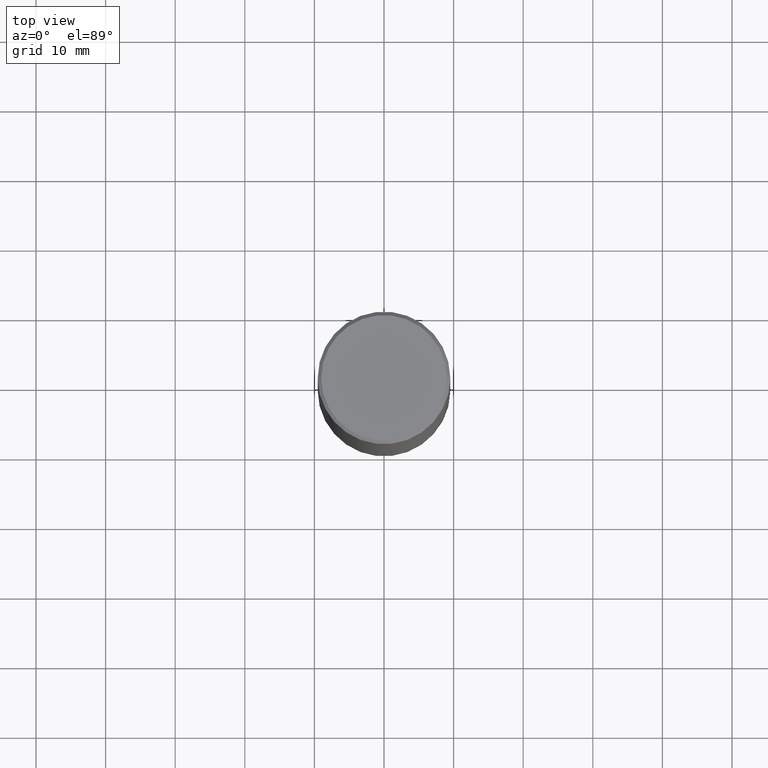
[diagram: clean part render]
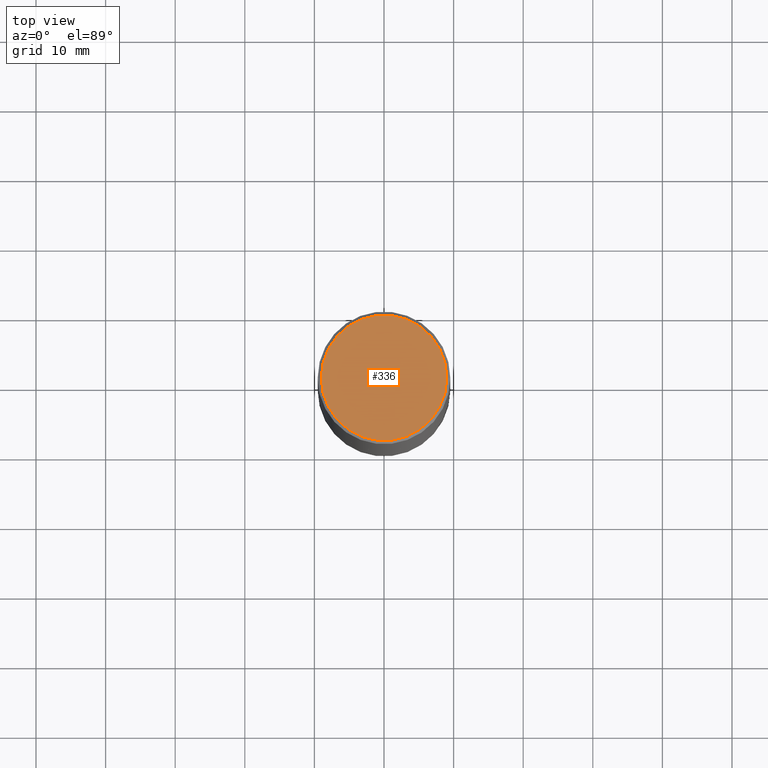
[diagram: same view with one face highlighted and labeled with its STEP entity id]
A machine part, top view. The second image highlights one B-rep face of the part: STEP entity #336.
In plain terms, the highlighted planar face has unit normal (0, -0, -1).
Its self-contained STEP definition (entity closure, byte-faithful):
#12 = DIRECTION ( 'NONE',  ( 2.438088387897960049E-29, -3.491481338843145188E-15, -1.000000000000000000 ) ) ;
#42 = AXIS2_PLACEMENT_3D ( 'NONE', #471, #12, #355 ) ;
#44 = CARTESIAN_POINT ( 'NONE',  ( 0.3549999999999990941, -2.538996582575035132E-15, 8.537024980218368550E-18 ) ) ;
#86 = DIRECTION ( 'NONE',  ( 1.000000000000000000, -6.982962677686265133E-15, 4.876231632512000515E-29 ) ) ;
#92 = ORIENTED_EDGE ( 'NONE', *, *, #427, .T. ) ;
#116 = PLANE ( 'NONE',  #42 ) ;
#154 = EDGE_CURVE ( 'NONE', #319, #354, #332, .T. ) ;
#172 = DIRECTION ( 'NONE',  ( -2.445468806185136597E-29, 3.491481338843145583E-15, 1.000000000000000000 ) ) ;
#200 = DIRECTION ( 'NONE',  ( -2.445468806185136597E-29, 3.491481338843145583E-15, 1.000000000000000000 ) ) ;
#202 = AXIS2_PLACEMENT_3D ( 'NONE', #364, #172, #326 ) ;
#284 = CARTESIAN_POINT ( 'NONE',  ( -0.3549999999999990941, 2.513866563967049547E-15, 8.537024980183364388E-18 ) ) ;
#319 = VERTEX_POINT ( 'NONE', #284 ) ;
#326 = DIRECTION ( 'NONE',  ( 1.000000000000000000, -6.982962677686265133E-15, 4.876231632512000515E-29 ) ) ;
#332 = CIRCLE ( 'NONE', #202, 0.3549999999999990941 ) ;
#336 = ADVANCED_FACE ( 'NONE', ( #438 ), #116, .F. ) ;
#354 = VERTEX_POINT ( 'NONE', #44 ) ;
#355 = DIRECTION ( 'NONE',  ( -1.000000000000000000, 6.982962677686265922E-15, -4.876176775795935793E-29 ) ) ;
#364 = CARTESIAN_POINT ( 'NONE',  ( -2.087702828670439639E-46, 2.980686340760894400E-32, 8.537024980200822558E-18 ) ) ;
#392 = CARTESIAN_POINT ( 'NONE',  ( -2.087702828670439639E-46, 2.980686340760894400E-32, 8.537024980200822558E-18 ) ) ;
#406 = CIRCLE ( 'NONE', #469, 0.3549999999999990941 ) ;
#427 = EDGE_CURVE ( 'NONE', #354, #319, #406, .T. ) ;
#437 = ORIENTED_EDGE ( 'NONE', *, *, #154, .T. ) ;
#438 = FACE_OUTER_BOUND ( 'NONE', #474, .T. ) ;
#469 = AXIS2_PLACEMENT_3D ( 'NONE', #392, #200, #86 ) ;
#471 = CARTESIAN_POINT ( 'NONE',  ( 2.478951750578617898E-15, 0.3549999999999990941, -1.235207362799213058E-15 ) ) ;
#474 = EDGE_LOOP ( 'NONE', ( #437, #92 ) ) ;